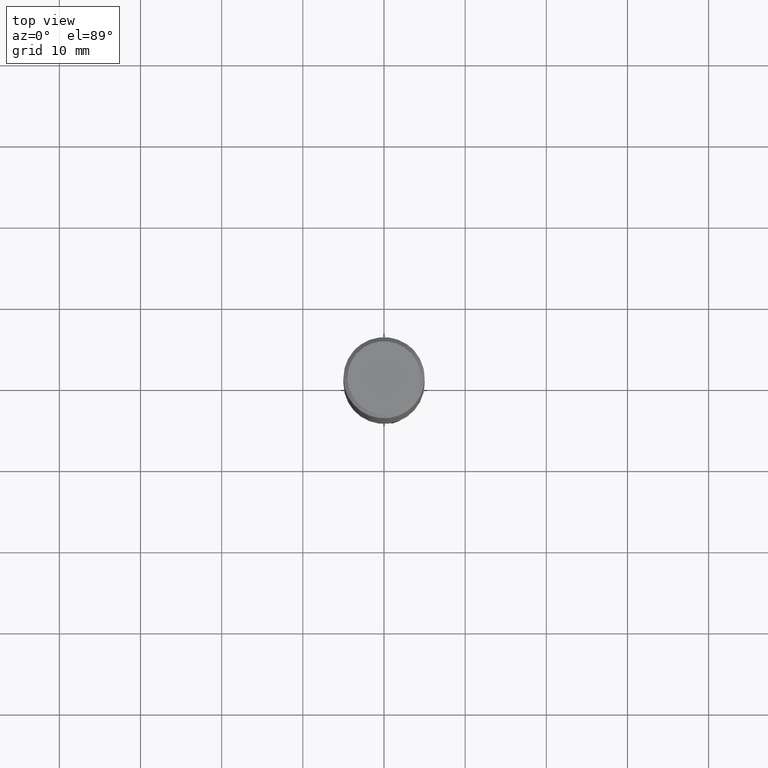
[diagram: clean part render]
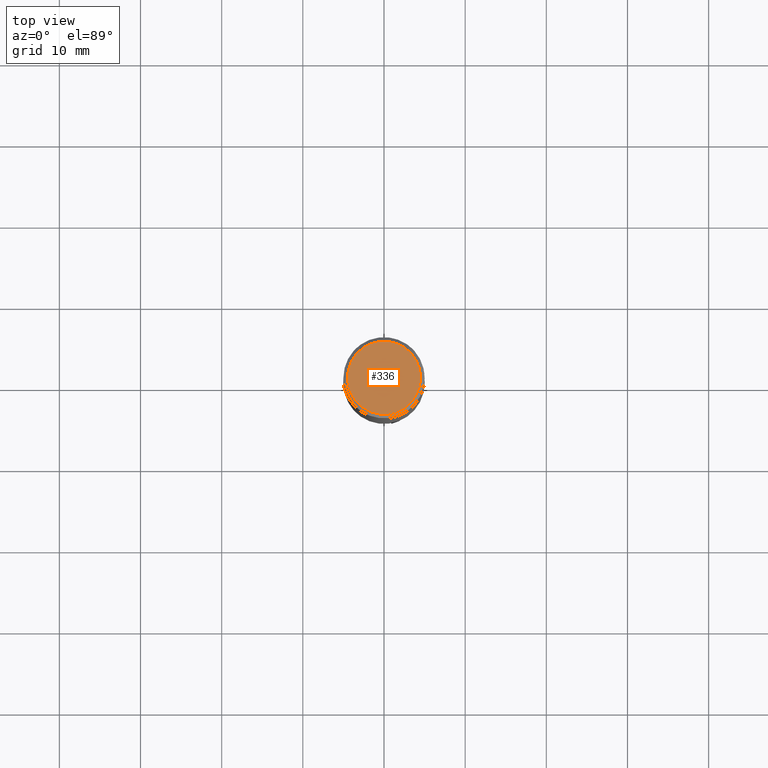
[diagram: same view with one face highlighted and labeled with its STEP entity id]
A machine part, top view. The second image highlights one B-rep face of the part: STEP entity #336.
In plain terms, the highlighted planar face has unit normal (-0, -0, 1).
Its self-contained STEP definition (entity closure, byte-faithful):
#296 = VERTEX_POINT('', #297);
#297 = CARTESIAN_POINT('', (-4.5, 2.75545529808154E-16, 0.));
#303 = EDGE_CURVE('', #296, #296, #304, .T.);
#304 = CIRCLE('', #305, 4.5);
#305 = AXIS2_PLACEMENT_3D('', #306, #307, #308);
#306 = CARTESIAN_POINT('', (-2.18952885050753E-47, 1.25267077750159E-64, -7.44237865339621E-80));
#307 = DIRECTION('', (3.74939945665464E-33, 6.12323399573677E-17, -1.));
#308 = DIRECTION('', (-1., 6.12323399573677E-17, 0.));
#336 = ADVANCED_FACE('', (#337), #340, .T.);
#337 = FACE_OUTER_BOUND('', #338, .T.);
#338 = EDGE_LOOP('', (#339));
#339 = ORIENTED_EDGE('', *, *, #303, .F.);
#340 = PLANE('', #341);
#341 = AXIS2_PLACEMENT_3D('', #342, #343, #344);
#342 = CARTESIAN_POINT('', (7.00035713374682, -7.00035713374682, -4.28648247836569E-16));
#343 = DIRECTION('', (-1.57898385724467E-15, -1.64021619720204E-15, 1.));
#344 = DIRECTION('', (0., 1., 1.64021619720204E-15));